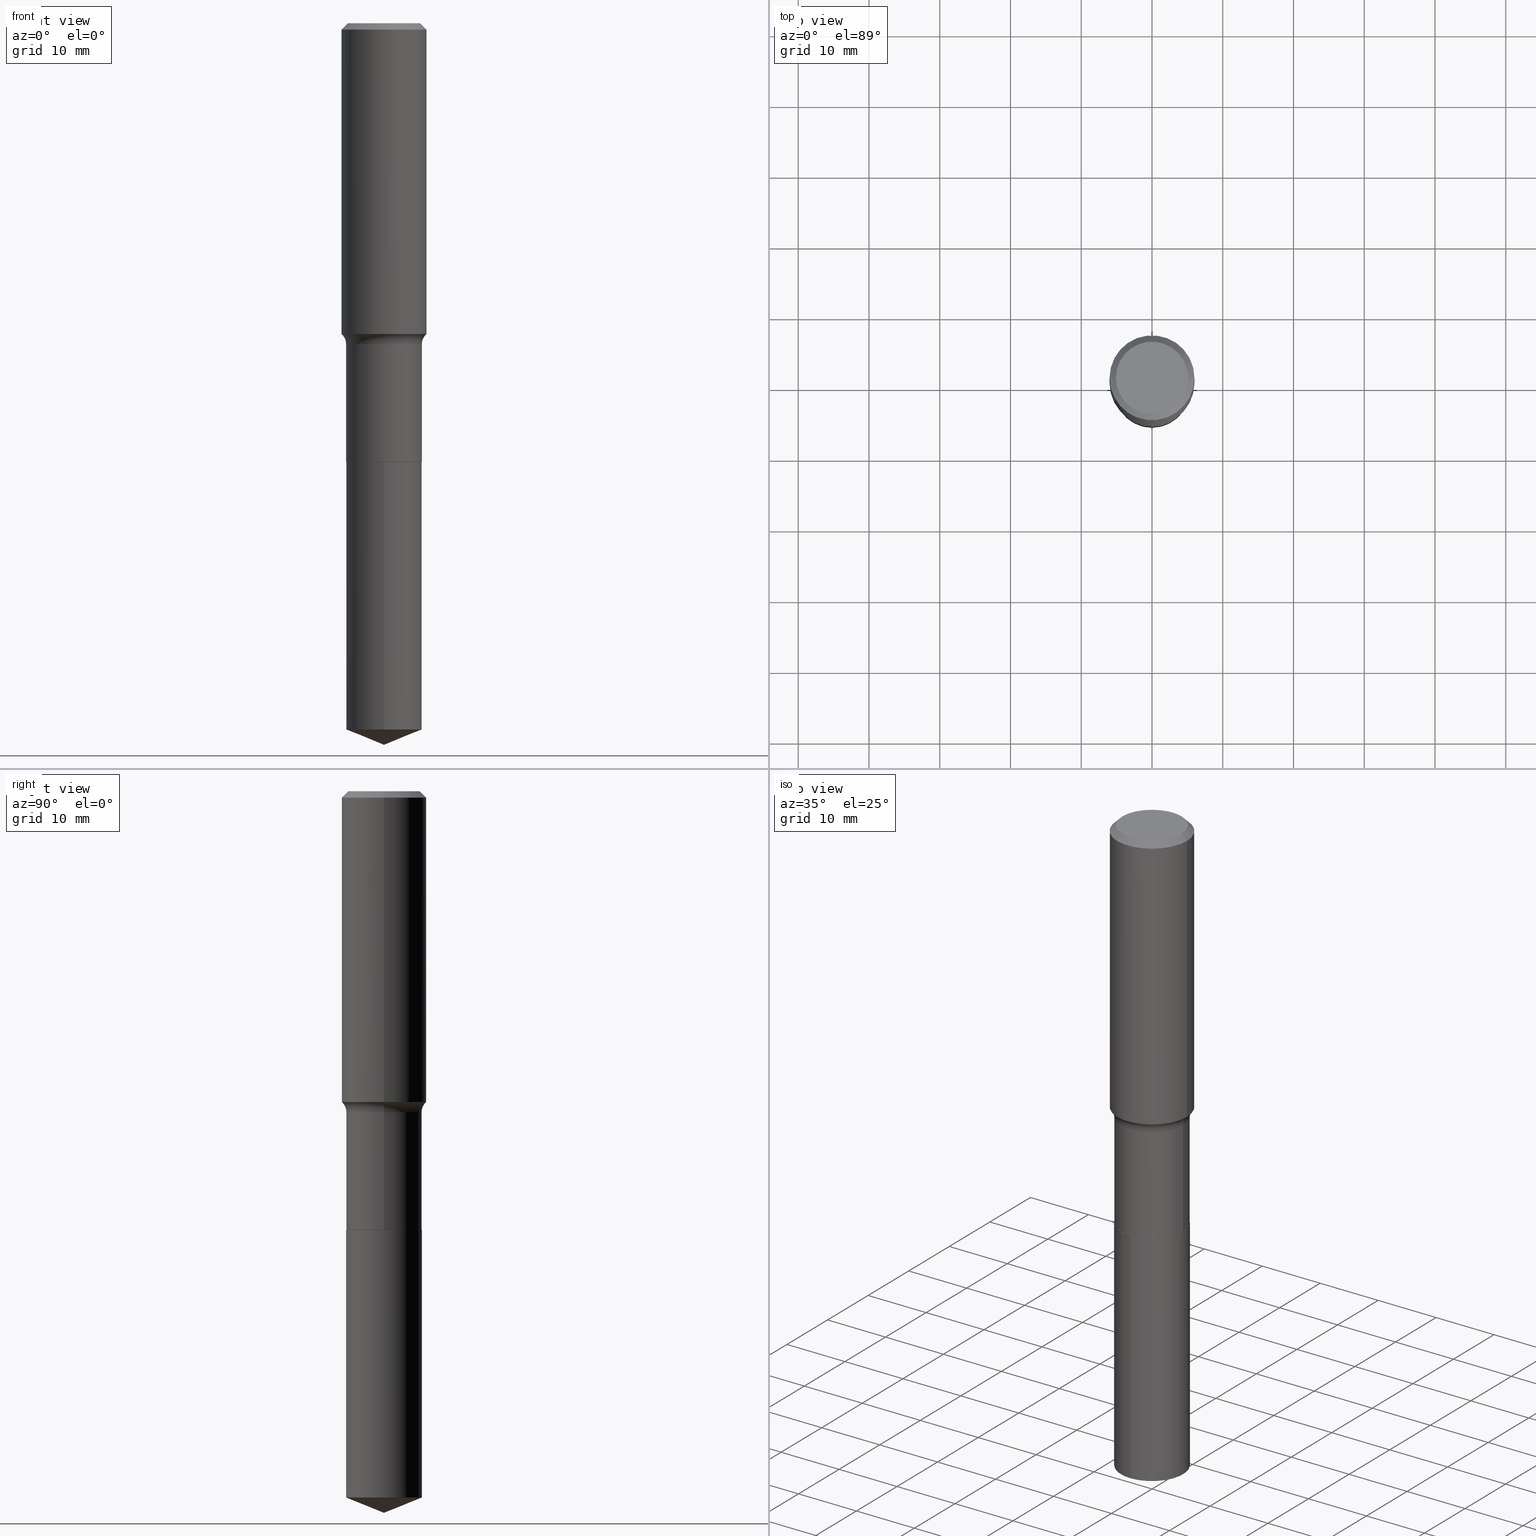
[diagram: canonical four-view strip — front | top / right | iso, engineering-drawing reading convention]
A machine part, canonical four-view strip (front | top / right | iso — engineering-drawing reading convention). The complete STEP part file that produces these views, byte-faithful:
ISO-10303-21;
HEADER;
FILE_DESCRIPTION (( 'STEP AP203' ),
    '1' );
FILE_NAME ('69197.STEP',
    '2024-04-19T17:21:59',
    ( '' ),
    ( '' ),
    'SwSTEP 2.0',
    'SolidWorks 2023',
    '' );
FILE_SCHEMA (( 'CONFIG_CONTROL_DESIGN' ));
ENDSEC;

DATA;
#1 = CYLINDRICAL_SURFACE ( 'NONE', #223, 0.2362000000000001043 ) ;
#2 = ORIENTED_EDGE ( 'NONE', *, *, #305, .T. ) ;
#3 = EDGE_CURVE ( 'NONE', #185, #444, #270, .T. ) ;
#4 = CARTESIAN_POINT ( 'NONE',  ( 0.000000000000000000, 0.000000000000000000, 0.000000000000000000 ) ) ;
#5 = ORIENTED_EDGE ( 'NONE', *, *, #88, .F. ) ;
#6 = CIRCLE ( 'NONE', #222, 0.2106499999999999484 ) ;
#7 = AXIS2_PLACEMENT_3D ( 'NONE', #375, #184, #383 ) ;
#8 = ORIENTED_EDGE ( 'NONE', *, *, #140, .F. ) ;
#9 = DIRECTION ( 'NONE',  ( -6.982962677686266711E-15, -1.000000000000000000, 3.491481338843145583E-15 ) ) ;
#10 = EDGE_CURVE ( 'NONE', #451, #432, #41, .T. ) ;
#11 = ORIENTED_EDGE ( 'NONE', *, *, #426, .F. ) ;
#12 = DIRECTION ( 'NONE',  ( 2.438088387897960049E-29, -3.491481338843145188E-15, -1.000000000000000000 ) ) ;
#13 = ORIENTED_EDGE ( 'NONE', *, *, #426, .T. ) ;
#14 = DIRECTION ( 'NONE',  ( 1.000000000000000000, -6.982962677686268288E-15, 0.000000000000000000 ) ) ;
#15 = AXIS2_PLACEMENT_3D ( 'NONE', #433, #22, #319 ) ;
#16 = EDGE_CURVE ( 'NONE', #185, #344, #481, .T. ) ;
#17 = CALENDAR_DATE ( 2024, 19, 4 ) ;
#18 = DIRECTION ( 'NONE',  ( -2.445425754346182208E-29, 3.491542991526886614E-15, 1.000000000000000000 ) ) ;
#19 = APPROVAL_STATUS ( 'not_yet_approved' ) ;
#20 = DIRECTION ( 'NONE',  ( 1.000000000000000000, -6.982962677686266711E-15, 4.876176775795935793E-29 ) ) ;
#21 = MECHANICAL_CONTEXT ( 'NONE', #465, 'mechanical' ) ;
#22 = DIRECTION ( 'NONE',  ( -2.445468806185136597E-29, 3.491481338843145583E-15, 1.000000000000000000 ) ) ;
#23 = CARTESIAN_POINT ( 'NONE',  ( 4.229115208764347773E-29, -6.038055686448444993E-15, -1.729367881556277187 ) ) ;
#24 = DIRECTION ( 'NONE',  ( 0.7071067811864267805, -2.468850131080992517E-15, 0.7071067811866682540 ) ) ;
#25 = EDGE_LOOP ( 'NONE', ( #250, #110, #117, #5 ) ) ;
#26 = FACE_OUTER_BOUND ( 'NONE', #139, .T. ) ;
#27 = MANIFOLD_SOLID_BREP ( 'Body-Move/Copy2[1]', #391 ) ;
#28 = EDGE_LOOP ( 'NONE', ( #104, #112, #488, #33 ) ) ;
#29 = CIRCLE ( 'NONE', #60, 0.2362000000000002153 ) ;
#30 = APPROVAL_PERSON_ORGANIZATION ( #273, #209, #86 ) ;
#31 = EDGE_CURVE ( 'NONE', #173, #39, #389, .T. ) ;
#32 = CARTESIAN_POINT ( 'NONE',  ( 5.969144809017299038E-29, -8.522356799982232966E-15, -2.440900000000000070 ) ) ;
#33 = ORIENTED_EDGE ( 'NONE', *, *, #215, .T. ) ;
#34 = LINE ( 'NONE', #251, #73 ) ;
#35 = EDGE_LOOP ( 'NONE', ( #11, #221, #264, #416 ) ) ;
#36 = CARTESIAN_POINT ( 'NONE',  ( 0.000000000000000000, 0.000000000000000000, 0.000000000000000000 ) ) ;
#37 = CIRCLE ( 'NONE', #312, 0.2101500000000000035 ) ;
#38 = DIRECTION ( 'NONE',  ( 1.000000000000000000, -6.982962677686274599E-15, 0.000000000000000000 ) ) ;
#39 = VERTEX_POINT ( 'NONE', #122 ) ;
#40 = CARTESIAN_POINT ( 'NONE',  ( 5.969144809017299038E-29, -8.522356799982232966E-15, -2.440900000000000070 ) ) ;
#41 = LINE ( 'NONE', #186, #280 ) ;
#42 = EDGE_LOOP ( 'NONE', ( #213, #309, #182, #428 ) ) ;
#43 = AXIS2_PLACEMENT_3D ( 'NONE', #467, #440, #285 ) ;
#44 = PLANE ( 'NONE',  #116 ) ;
#45 = ORIENTED_EDGE ( 'NONE', *, *, #232, .F. ) ;
#46 = DIRECTION ( 'NONE',  ( -2.445468806185136597E-29, 3.491481338843145583E-15, 1.000000000000000000 ) ) ;
#47 = VERTEX_POINT ( 'NONE', #235 ) ;
#48 = DIRECTION ( 'NONE',  ( -2.445468806185136597E-29, 3.491481338843145583E-15, 1.000000000000000000 ) ) ;
#49 = ADVANCED_FACE ( 'NONE', ( #170 ), #123, .F. ) ;
#50 = CARTESIAN_POINT ( 'NONE',  ( 0.000000000000000000, 0.000000000000000000, 0.000000000000000000 ) ) ;
#51 = CONICAL_SURFACE ( 'NONE', #288, 0.2361999999999999933, 0.7853981633974452814 ) ;
#52 = AXIS2_PLACEMENT_3D ( 'NONE', #56, #124, #395 ) ;
#53 = DATE_AND_TIME ( #161, #176 ) ;
#54 = CARTESIAN_POINT ( 'NONE',  ( -1.001697619218023151E-46, 1.430158722866391908E-32, 4.096137381448114529E-18 ) ) ;
#55 = ADVANCED_FACE ( 'NONE', ( #358 ), #419, .T. ) ;
#56 = CARTESIAN_POINT ( 'NONE',  ( 0.000000000000000000, 0.000000000000000000, 0.000000000000000000 ) ) ;
#57 = CARTESIAN_POINT ( 'NONE',  ( -0.2007700000000000040, 1.463821008716677338E-15, 4.096137381438094301E-18 ) ) ;
#58 = PERSON_AND_ORGANIZATION ( #274, #198 ) ;
#59 = CARTESIAN_POINT ( 'NONE',  ( 5.969144809017300159E-29, -8.522356799982234543E-15, -2.440900000000000070 ) ) ;
#60 = AXIS2_PLACEMENT_3D ( 'NONE', #23, #356, #91 ) ;
#61 =( GEOMETRIC_REPRESENTATION_CONTEXT ( 3 ) GLOBAL_UNCERTAINTY_ASSIGNED_CONTEXT ( ( #397 ) ) GLOBAL_UNIT_ASSIGNED_CONTEXT ( ( #74, #378, #345 ) ) REPRESENTATION_CONTEXT ( 'NONE', 'WORKASPACE' ) );
#62 = CARTESIAN_POINT ( 'NONE',  ( 9.820096201727962755E-29, -1.402098919107451851E-14, -4.015699999999999825 ) ) ;
#63 = DIRECTION ( 'NONE',  ( -6.982962677686265922E-15, -1.000000000000000000, 2.593731776562319814E-15 ) ) ;
#64 = DIRECTION ( 'NONE',  ( -1.000000000000000000, 6.982962677686266711E-15, 0.000000000000000000 ) ) ;
#65 = AXIS2_PLACEMENT_3D ( 'NONE', #301, #457, #315 ) ;
#66 = TOROIDAL_SURFACE ( 'NONE', #15, 0.2886499999999999622, 0.07799999999999999989 ) ;
#67 = PRODUCT ( '69197', '69197', '', ( #21 ) ) ;
#68 = FACE_OUTER_BOUND ( 'NONE', #423, .T. ) ;
#69 = ADVANCED_FACE ( 'NONE', ( #85 ), #66, .F. ) ;
#70 = CARTESIAN_POINT ( 'NONE',  ( 9.820096201727964997E-29, -1.402098919107452008E-14, -4.015699999999999825 ) ) ;
#71 = ORIENTED_EDGE ( 'NONE', *, *, #179, .F. ) ;
#72 = CARTESIAN_POINT ( 'NONE',  ( -0.2101500000000000035, -7.026502013608272383E-15, -2.440900000000000070 ) ) ;
#73 = VECTOR ( 'NONE', #449, 39.37007874015748854 ) ;
#74 =( CONVERSION_BASED_UNIT ( 'INCH', #106 ) LENGTH_UNIT ( ) NAMED_UNIT ( #144 ) );
#75 = ORIENTED_EDGE ( 'NONE', *, *, #257, .T. ) ;
#76 = FACE_OUTER_BOUND ( 'NONE', #83, .T. ) ;
#77 = ORIENTED_EDGE ( 'NONE', *, *, #158, .F. ) ;
#78 = EDGE_CURVE ( 'NONE', #344, #39, #429, .T. ) ;
#79 = PLANE ( 'NONE',  #183 ) ;
#80 = ORIENTED_EDGE ( 'NONE', *, *, #307, .F. ) ;
#81 = CIRCLE ( 'NONE', #281, 0.2361999999999999933 ) ;
#82 = DIRECTION ( 'NONE',  ( -2.445425754346182208E-29, 3.491542991526886614E-15, 1.000000000000000000 ) ) ;
#83 = EDGE_LOOP ( 'NONE', ( #145, #462, #297, #45 ) ) ;
#84 = DATE_AND_TIME ( #398, #385 ) ;
#85 = FACE_OUTER_BOUND ( 'NONE', #42, .T. ) ;
#86 = APPROVAL_ROLE ( '' ) ;
#87 = DIRECTION ( 'NONE',  ( -2.445425754346182208E-29, 3.491542991526886614E-15, 1.000000000000000000 ) ) ;
#88 = EDGE_CURVE ( 'NONE', #234, #173, #448, .T. ) ;
#89 = DATE_TIME_ROLE ( 'classification_date' ) ;
#90 = CONICAL_SURFACE ( 'NONE', #97, 97.44436430772833546, 1.186823891356144633 ) ;
#91 = DIRECTION ( 'NONE',  ( 1.000000000000000000, -6.982962677686266711E-15, 0.000000000000000000 ) ) ;
#92 = EDGE_CURVE ( 'NONE', #384, #266, #399, .T. ) ;
#93 = ADVANCED_FACE ( 'NONE', ( #128 ), #463, .T. ) ;
#94 = COORDINATED_UNIVERSAL_TIME_OFFSET ( 5, 0, .BEHIND. ) ;
#95 = DIRECTION ( 'NONE',  ( -2.445468806185136597E-29, 3.491481338843145583E-15, 1.000000000000000000 ) ) ;
#96 = DIRECTION ( 'NONE',  ( -2.445468806185136597E-29, 3.491481338843145583E-15, 1.000000000000000000 ) ) ;
#97 = AXIS2_PLACEMENT_3D ( 'NONE', #203, #396, #470 ) ;
#98 = CARTESIAN_POINT ( 'NONE',  ( 9.612075687473308586E-29, -1.372368002751595173E-14, -3.930591875527824186 ) ) ;
#99 = LINE ( 'NONE', #289, #238 ) ;
#100 = ORIENTED_EDGE ( 'NONE', *, *, #214, .F. ) ;
#101 = FACE_OUTER_BOUND ( 'NONE', #259, .T. ) ;
#102 = CIRCLE ( 'NONE', #272, 0.2362000000000002153 ) ;
#103 = DIRECTION ( 'NONE',  ( 2.445468806185136597E-29, -3.491481338843145583E-15, -1.000000000000000000 ) ) ;
#104 = ORIENTED_EDGE ( 'NONE', *, *, #16, .F. ) ;
#105 = DIRECTION ( 'NONE',  ( 1.000000000000000000, -6.982962677686265922E-15, 4.876176775795935793E-29 ) ) ;
#106 = LENGTH_MEASURE_WITH_UNIT ( LENGTH_MEASURE( 0.02539999999999999897 ), #386 );
#107 = VERTEX_POINT ( 'NONE', #57 ) ;
#108 = CIRCLE ( 'NONE', #141, 0.2007700000000000040 ) ;
#109 = FACE_OUTER_BOUND ( 'NONE', #409, .T. ) ;
#110 = ORIENTED_EDGE ( 'NONE', *, *, #179, .T. ) ;
#111 = CARTESIAN_POINT ( 'NONE',  ( -1.470961088054552202E-15, -0.2106500000000085526, -2.440899999999999181 ) ) ;
#112 = ORIENTED_EDGE ( 'NONE', *, *, #130, .F. ) ;
#113 = DIRECTION ( 'NONE',  ( -2.438088387897960049E-29, 3.491481338843145188E-15, 1.000000000000000000 ) ) ;
#114 = EDGE_LOOP ( 'NONE', ( #8, #71 ) ) ;
#115 = APPROVAL_ROLE ( '' ) ;
#116 = AXIS2_PLACEMENT_3D ( 'NONE', #427, #12, #146 ) ;
#117 = ORIENTED_EDGE ( 'NONE', *, *, #232, .T. ) ;
#118 = PERSON_AND_ORGANIZATION ( #274, #198 ) ;
#119 = APPROVAL ( #363, 'UNSPECIFIED' ) ;
#120 = CARTESIAN_POINT ( 'NONE',  ( 5.967922074614207358E-29, -8.520611059312812251E-15, -2.440399999999999903 ) ) ;
#121 = PERSON_AND_ORGANIZATION ( #274, #198 ) ;
#122 = CARTESIAN_POINT ( 'NONE',  ( 0.2106499999999999484, -7.710587388701196730E-15, -1.787099999999999911 ) ) ;
#123 = TOROIDAL_SURFACE ( 'NONE', #43, 0.2886499999999999622, 0.07799999999999999989 ) ;
#124 = DIRECTION ( 'NONE',  ( 0.000000000000000000, 0.000000000000000000, 1.000000000000000000 ) ) ;
#125 = AXIS2_PLACEMENT_3D ( 'NONE', #276, #87, #359 ) ;
#126 = ADVANCED_FACE ( 'NONE', ( #278 ), #51, .T. ) ;
#127 = APPROVAL_DATE_TIME ( #84, #119 ) ;
#128 = FACE_OUTER_BOUND ( 'NONE', #25, .T. ) ;
#129 = CARTESIAN_POINT ( 'NONE',  ( 5.969144809017300159E-29, -8.522356799982234543E-15, -2.440900000000000070 ) ) ;
#130 = EDGE_CURVE ( 'NONE', #187, #185, #29, .T. ) ;
#131 = DIRECTION ( 'NONE',  ( -6.982962677686265922E-15, -1.000000000000000000, 3.890597664843479129E-15 ) ) ;
#132 = CLOSED_SHELL ( 'NONE', ( #327, #243, #166, #69, #367, #267, #49, #492, #126, #313, #469, #93 ) ) ;
#133 = AXIS2_PLACEMENT_3D ( 'NONE', #120, #95, #244 ) ;
#134 = ORIENTED_EDGE ( 'NONE', *, *, #31, .T. ) ;
#135 = DIRECTION ( 'NONE',  ( -2.445468806185136597E-29, 3.491481338843145583E-15, 1.000000000000000000 ) ) ;
#136 = CC_DESIGN_PERSON_AND_ORGANIZATION_ASSIGNMENT ( #437, #168, ( #430 ) ) ;
#137 = DIRECTION ( 'NONE',  ( -2.445468806185136597E-29, 3.491481338843145583E-15, 1.000000000000000000 ) ) ;
#138 = LINE ( 'NONE', #177, #328 ) ;
#139 = EDGE_LOOP ( 'NONE', ( #332, #193 ) ) ;
#140 = EDGE_CURVE ( 'NONE', #295, #374, #368, .T. ) ;
#141 = AXIS2_PLACEMENT_3D ( 'NONE', #54, #162, #201 ) ;
#142 = ADVANCED_FACE ( 'NONE', ( #240 ), #90, .T. ) ;
#143 = CYLINDRICAL_SURFACE ( 'NONE', #188, 0.2106499999999999762 ) ;
#144 = DIMENSIONAL_EXPONENTS ( 1.000000000000000000, 0.000000000000000000, 0.000000000000000000, 0.000000000000000000, 0.000000000000000000, 0.000000000000000000, 0.000000000000000000 ) ;
#145 = ORIENTED_EDGE ( 'NONE', *, *, #140, .T. ) ;
#146 = DIRECTION ( 'NONE',  ( -1.000000000000000000, 6.982962677686265922E-15, -4.876176775795935793E-29 ) ) ;
#147 = EDGE_LOOP ( 'NONE', ( #261, #414, #377 ) ) ;
#148 = DIRECTION ( 'NONE',  ( 1.000000000000000000, -6.982962677686266711E-15, 0.000000000000000000 ) ) ;
#149 = ORIENTED_EDGE ( 'NONE', *, *, #10, .F. ) ;
#150 = CIRCLE ( 'NONE', #160, 0.2106500000000000039 ) ;
#151 = CIRCLE ( 'NONE', #321, 0.07799999999999995826 ) ;
#152 = CARTESIAN_POINT ( 'NONE',  ( 1.496758272878746719E-15, 0.2106499999999862371, -3.930591875527825074 ) ) ;
#153 = ORIENTED_EDGE ( 'NONE', *, *, #307, .T. ) ;
#154 = CARTESIAN_POINT ( 'NONE',  ( 0.2886499999999999622, -8.255258477560724776E-15, -1.787099999999999911 ) ) ;
#155 = ORIENTED_EDGE ( 'NONE', *, *, #237, .T. ) ;
#156 = APPROVAL_DATE_TIME ( #314, #209 ) ;
#157 = ORIENTED_EDGE ( 'NONE', *, *, #478, .T. ) ;
#158 = EDGE_CURVE ( 'NONE', #107, #384, #108, .T. ) ;
#159 = EDGE_CURVE ( 'NONE', #47, #432, #196, .T. ) ;
#160 = AXIS2_PLACEMENT_3D ( 'NONE', #411, #137, #330 ) ;
#161 = CALENDAR_DATE ( 2024, 19, 4 ) ;
#162 = DIRECTION ( 'NONE',  ( -2.445468806185136597E-29, 3.491481338843145583E-15, 1.000000000000000000 ) ) ;
#163 = DATE_TIME_ROLE ( 'creation_date' ) ;
#164 = DIRECTION ( 'NONE',  ( -6.982962677686265922E-15, -1.000000000000000000, 2.593731776562319814E-15 ) ) ;
#165 = COORDINATED_UNIVERSAL_TIME_OFFSET ( 5, 0, .BEHIND. ) ;
#166 = ADVANCED_FACE ( 'NONE', ( #361 ), #236, .T. ) ;
#167 = CARTESIAN_POINT ( 'NONE',  ( 9.612075687473308586E-29, -1.372368002751595173E-14, -3.930591875527824186 ) ) ;
#168 = PERSON_AND_ORGANIZATION_ROLE ( 'classification_officer' ) ;
#169 = CIRCLE ( 'NONE', #473, 0.2106500000000000039 ) ;
#170 = FACE_OUTER_BOUND ( 'NONE', #28, .T. ) ;
#171 = DIRECTION ( 'NONE',  ( -6.982962677686265133E-15, -1.000000000000000000, 3.498761904101830713E-15 ) ) ;
#172 = DIRECTION ( 'NONE',  ( 1.000000000000000000, -6.982962677686268288E-15, 0.000000000000000000 ) ) ;
#173 = VERTEX_POINT ( 'NONE', #471 ) ;
#174 = EDGE_CURVE ( 'NONE', #341, #451, #246, .T. ) ;
#175 = CARTESIAN_POINT ( 'NONE',  ( 0.2362000000000002153, -7.687431470917942307E-15, -1.729367881556277187 ) ) ;
#176 = LOCAL_TIME ( 13, 21, 59.00000000000000000, #165 ) ;
#177 = CARTESIAN_POINT ( 'NONE',  ( 0.2101500000000000035, -9.989826406698003297E-15, -2.440900000000000070 ) ) ;
#178 = ORIENTED_EDGE ( 'NONE', *, *, #237, .F. ) ;
#179 = EDGE_CURVE ( 'NONE', #374, #295, #37, .T. ) ;
#180 = CARTESIAN_POINT ( 'NONE',  ( 8.664295980313993487E-31, -1.237031838352134079E-16, -0.03543000000000021826 ) ) ;
#181 = DIRECTION ( 'NONE',  ( -2.445468806185136597E-29, 3.491481338843145583E-15, 1.000000000000000000 ) ) ;
#182 = ORIENTED_EDGE ( 'NONE', *, *, #78, .T. ) ;
#183 = AXIS2_PLACEMENT_3D ( 'NONE', #219, #113, #105 ) ;
#184 = DIRECTION ( 'NONE',  ( -2.445468806185136597E-29, 3.491481338843145583E-15, 1.000000000000000000 ) ) ;
#185 = VERTEX_POINT ( 'NONE', #371 ) ;
#186 = CARTESIAN_POINT ( 'NONE',  ( -1.470961088054552202E-15, -0.2106500000000085526, -2.440899999999999181 ) ) ;
#187 = VERTEX_POINT ( 'NONE', #175 ) ;
#188 = AXIS2_PLACEMENT_3D ( 'NONE', #36, #181, #333 ) ;
#189 = DIRECTION ( 'NONE',  ( 1.000000000000000000, -6.982962677686268288E-15, 0.000000000000000000 ) ) ;
#190 = EDGE_CURVE ( 'NONE', #173, #234, #150, .T. ) ;
#191 = ORIENTED_EDGE ( 'NONE', *, *, #214, .T. ) ;
#192 = LINE ( 'NONE', #269, #482 ) ;
#193 = ORIENTED_EDGE ( 'NONE', *, *, #486, .T. ) ;
#194 = ADVANCED_FACE ( 'NONE', ( #68 ), #413, .F. ) ;
#195 = DIRECTION ( 'NONE',  ( 2.445468806185136597E-29, -3.491481338843145583E-15, -1.000000000000000000 ) ) ;
#196 = CIRCLE ( 'NONE', #125, 0.2106500000000000039 ) ;
#197 = PERSON_AND_ORGANIZATION_ROLE ( 'design_supplier' ) ;
#198 = ORGANIZATION ( 'UNSPECIFIED', 'UNSPECIFIED', '' ) ;
#199 = DIRECTION ( 'NONE',  ( -2.445468806185136597E-29, 3.491481338843145583E-15, 1.000000000000000000 ) ) ;
#200 = APPLICATION_PROTOCOL_DEFINITION ( 'international standard', 'config_control_design', 1994, #465 ) ;
#201 = DIRECTION ( 'NONE',  ( 1.000000000000000000, -6.982962677686266711E-15, 4.876140833081945105E-29 ) ) ;
#202 = APPLICATION_PROTOCOL_DEFINITION ( 'international standard', 'config_control_design', 1994, #204 ) ;
#203 = CARTESIAN_POINT ( 'NONE',  ( -8.645640321485652588E-28, 1.234414837980197635E-13, 35.35437874015748605 ) ) ;
#204 = APPLICATION_CONTEXT ( 'configuration controlled 3d designs of mechanical parts and assemblies' ) ;
#205 = PERSON_AND_ORGANIZATION_ROLE ( 'creator' ) ;
#206 = CARTESIAN_POINT ( 'NONE',  ( 0.2106499999999999762, -1.470961088054611958E-15, 1.027166637821413806E-29 ) ) ;
#207 = CC_DESIGN_APPROVAL ( #268, ( #407 ) ) ;
#208 = LINE ( 'NONE', #479, #320 ) ;
#209 = APPROVAL ( #468, 'UNSPECIFIED' ) ;
#210 = LINE ( 'NONE', #70, #362 ) ;
#211 = FACE_OUTER_BOUND ( 'NONE', #35, .T. ) ;
#212 = AXIS2_PLACEMENT_3D ( 'NONE', #369, #487, #131 ) ;
#213 = ORIENTED_EDGE ( 'NONE', *, *, #403, .F. ) ;
#214 = EDGE_CURVE ( 'NONE', #432, #47, #436, .T. ) ;
#215 = EDGE_CURVE ( 'NONE', #39, #344, #6, .T. ) ;
#216 = DIRECTION ( 'NONE',  ( -2.445425754346182208E-29, 3.491542991526886614E-15, 1.000000000000000000 ) ) ;
#217 = DIRECTION ( 'NONE',  ( -6.474490251793178629E-15, -0.9271838545667862030, 0.3746065934159147903 ) ) ;
#218 = ORIENTED_EDGE ( 'NONE', *, *, #403, .T. ) ;
#219 = CARTESIAN_POINT ( 'NONE',  ( 3.753414775677078868E-29, -1.169540831924709376E-14, -2.440900000000000070 ) ) ;
#220 = EDGE_CURVE ( 'NONE', #227, #341, #34, .T. ) ;
#221 = ORIENTED_EDGE ( 'NONE', *, *, #174, .T. ) ;
#222 = AXIS2_PLACEMENT_3D ( 'NONE', #292, #135, #483 ) ;
#223 = AXIS2_PLACEMENT_3D ( 'NONE', #263, #418, #226 ) ;
#224 = EDGE_LOOP ( 'NONE', ( #491, #275, #155, #484 ) ) ;
#225 = PRODUCT_RELATED_PRODUCT_CATEGORY ( 'detail', '', ( #67 ) ) ;
#226 = DIRECTION ( 'NONE',  ( 1.000000000000000000, -6.982962677686266711E-15, 4.876176775795935793E-29 ) ) ;
#227 = VERTEX_POINT ( 'NONE', #62 ) ;
#228 = ADVANCED_FACE ( 'NONE', ( #211 ), #290, .T. ) ;
#229 = CARTESIAN_POINT ( 'NONE',  ( 8.664295980313993487E-31, -1.237031838352134079E-16, -0.03543000000000021826 ) ) ;
#230 = ORIENTED_EDGE ( 'NONE', *, *, #3, .T. ) ;
#231 = AXIS2_PLACEMENT_3D ( 'NONE', #455, #424, #189 ) ;
#232 = EDGE_CURVE ( 'NONE', #295, #173, #138, .T. ) ;
#233 = FACE_OUTER_BOUND ( 'NONE', #335, .T. ) ;
#234 = VERTEX_POINT ( 'NONE', #325 ) ;
#235 = CARTESIAN_POINT ( 'NONE',  ( 1.496758272878746916E-15, 0.2106499999999914274, -2.440900000000000514 ) ) ;
#236 = CYLINDRICAL_SURFACE ( 'NONE', #339, 0.2362000000000001043 ) ;
#237 = EDGE_CURVE ( 'NONE', #266, #444, #81, .T. ) ;
#238 = VECTOR ( 'NONE', #443, 39.37007874015748143 ) ;
#239 = PERSON_AND_ORGANIZATION ( #274, #198 ) ;
#240 = FACE_OUTER_BOUND ( 'NONE', #147, .T. ) ;
#241 = CALENDAR_DATE ( 2024, 19, 4 ) ;
#242 = DIRECTION ( 'NONE',  ( 1.000000000000000000, -6.982962677686267499E-15, 0.000000000000000000 ) ) ;
#243 = ADVANCED_FACE ( 'NONE', ( #446 ), #454, .T. ) ;
#244 = DIRECTION ( 'NONE',  ( 1.000000000000000000, -6.982962677686265922E-15, 0.000000000000000000 ) ) ;
#245 = EDGE_CURVE ( 'NONE', #227, #451, #210, .T. ) ;
#246 = CIRCLE ( 'NONE', #294, 0.2106500000000000039 ) ;
#247 = DIRECTION ( 'NONE',  ( 2.445425754346182208E-29, -3.491542991526886220E-15, -1.000000000000000000 ) ) ;
#248 = DESIGN_CONTEXT ( 'detailed design', #204, 'design' ) ;
#249 = DIRECTION ( 'NONE',  ( -0.7071067811864267805, 7.493145998869918709E-15, 0.7071067811866682540 ) ) ;
#250 = ORIENTED_EDGE ( 'NONE', *, *, #298, .F. ) ;
#251 = CARTESIAN_POINT ( 'NONE',  ( 9.820308215142285184E-29, -1.402068821500303058E-14, -4.015699999999999825 ) ) ;
#252 = LINE ( 'NONE', #404, #392 ) ;
#253 = VECTOR ( 'NONE', #400, 39.37007874015748143 ) ;
#254 = CC_DESIGN_SECURITY_CLASSIFICATION ( #430, ( #357 ) ) ;
#255 = PRODUCT_DEFINITION_SHAPE ( 'NONE', 'NONE',  #407 ) ;
#256 = CARTESIAN_POINT ( 'NONE',  ( 5.969144809017299038E-29, -8.522356799982232966E-15, -2.440900000000000070 ) ) ;
#257 = EDGE_CURVE ( 'NONE', #187, #266, #366, .T. ) ;
#258 = CARTESIAN_POINT ( 'NONE',  ( 4.229115208764347773E-29, -6.038055686448444993E-15, -1.729367881556277187 ) ) ;
#259 = EDGE_LOOP ( 'NONE', ( #299, #387, #134, #425 ) ) ;
#260 = CYLINDRICAL_SURFACE ( 'NONE', #456, 0.2106500000000000039 ) ;
#261 = ORIENTED_EDGE ( 'NONE', *, *, #220, .F. ) ;
#262 = AXIS2_PLACEMENT_3D ( 'NONE', #256, #216, #365 ) ;
#263 = CARTESIAN_POINT ( 'NONE',  ( 0.000000000000000000, 0.000000000000000000, 0.000000000000000000 ) ) ;
#264 = ORIENTED_EDGE ( 'NONE', *, *, #10, .T. ) ;
#265 = DIRECTION ( 'NONE',  ( -6.982962677686265922E-15, -1.000000000000000000, 3.890597664843479129E-15 ) ) ;
#266 = VERTEX_POINT ( 'NONE', #408 ) ;
#267 = ADVANCED_FACE ( 'NONE', ( #101 ), #143, .T. ) ;
#268 = APPROVAL ( #19, 'UNSPECIFIED' ) ;
#269 = CARTESIAN_POINT ( 'NONE',  ( 1.496758272878710628E-15, 0.2106499999999914829, -2.440900000000000514 ) ) ;
#270 = LINE ( 'NONE', #379, #417 ) ;
#271 = AXIS2_PLACEMENT_3D ( 'NONE', #438, #48, #242 ) ;
#272 = AXIS2_PLACEMENT_3D ( 'NONE', #258, #452, #148 ) ;
#273 = PERSON_AND_ORGANIZATION ( #274, #198 ) ;
#274 = PERSON ( 'UNSPECIFIED', 'UNSPECIFIED', 'UNSPECIFIED', ('UNSPECIFIED'), ('UNSPECIFIED'), ('UNSPECIFIED') ) ;
#275 = ORIENTED_EDGE ( 'NONE', *, *, #92, .T. ) ;
#276 = CARTESIAN_POINT ( 'NONE',  ( 5.969144809017299038E-29, -8.522356799982232966E-15, -2.440900000000000070 ) ) ;
#277 = PERSON_AND_ORGANIZATION_ROLE ( 'design_owner' ) ;
#278 = FACE_OUTER_BOUND ( 'NONE', #460, .T. ) ;
#279 = CC_DESIGN_PERSON_AND_ORGANIZATION_ASSIGNMENT ( #58, #277, ( #67 ) ) ;
#280 = VECTOR ( 'NONE', #346, 39.37007874015748143 ) ;
#281 = AXIS2_PLACEMENT_3D ( 'NONE', #180, #336, #485 ) ;
#282 = CALENDAR_DATE ( 2024, 19, 4 ) ;
#283 = DIRECTION ( 'NONE',  ( -2.445468806185136597E-29, 3.491481338843145583E-15, 1.000000000000000000 ) ) ;
#284 = APPROVAL_ROLE ( '' ) ;
#285 = DIRECTION ( 'NONE',  ( 1.000000000000000000, -6.982962677686267499E-15, 4.883557194083114022E-29 ) ) ;
#286 = EDGE_CURVE ( 'NONE', #107, #444, #252, .T. ) ;
#287 = DIRECTION ( 'NONE',  ( -2.445468806185136877E-29, 3.491481338843145188E-15, 1.000000000000000000 ) ) ;
#288 = AXIS2_PLACEMENT_3D ( 'NONE', #324, #195, #390 ) ;
#289 = CARTESIAN_POINT ( 'NONE',  ( -0.2106499999999999762, 1.496758272878650872E-15, -1.036173676762195916E-29 ) ) ;
#290 = CYLINDRICAL_SURFACE ( 'NONE', #262, 0.2106500000000000039 ) ;
#291 = EDGE_LOOP ( 'NONE', ( #381, #230, #178, #480 ) ) ;
#292 = CARTESIAN_POINT ( 'NONE',  ( 4.370297303533457201E-29, -6.239626300646584969E-15, -1.787099999999999911 ) ) ;
#293 = CARTESIAN_POINT ( 'NONE',  ( 8.664295980313993487E-31, -1.237031838352134079E-16, -0.03543000000000021826 ) ) ;
#294 = AXIS2_PLACEMENT_3D ( 'NONE', #167, #18, #164 ) ;
#295 = VERTEX_POINT ( 'NONE', #441 ) ;
#296 = CARTESIAN_POINT ( 'NONE',  ( 0.2007700000000000040, -1.560767496960719672E-15, 4.096137381458473721E-18 ) ) ;
#297 = ORIENTED_EDGE ( 'NONE', *, *, #190, .F. ) ;
#298 = EDGE_CURVE ( 'NONE', #374, #234, #208, .T. ) ;
#299 = ORIENTED_EDGE ( 'NONE', *, *, #305, .F. ) ;
#300 = DIRECTION ( 'NONE',  ( -2.445468806185136597E-29, 3.491481338843145583E-15, 1.000000000000000000 ) ) ;
#301 = CARTESIAN_POINT ( 'NONE',  ( -0.2886499999999999622, -4.188644693875056051E-15, -1.787099999999999911 ) ) ;
#302 = AXIS2_PLACEMENT_3D ( 'NONE', #293, #103, #64 ) ;
#303 = LOCAL_TIME ( 13, 21, 59.00000000000000000, #434 ) ;
#304 = FACE_OUTER_BOUND ( 'NONE', #349, .T. ) ;
#305 = EDGE_CURVE ( 'NONE', #234, #344, #99, .T. ) ;
#306 = ORIENTED_EDGE ( 'NONE', *, *, #190, .T. ) ;
#307 = EDGE_CURVE ( 'NONE', #451, #341, #169, .T. ) ;
#308 = DIRECTION ( 'NONE',  ( 1.000000000000000000, -6.982962677686266711E-15, 4.876176775795935793E-29 ) ) ;
#309 = ORIENTED_EDGE ( 'NONE', *, *, #16, .T. ) ;
#310 = COORDINATED_UNIVERSAL_TIME_OFFSET ( 5, 0, .BEHIND. ) ;
#311 = ORIENTED_EDGE ( 'NONE', *, *, #3, .F. ) ;
#312 = AXIS2_PLACEMENT_3D ( 'NONE', #317, #96, #172 ) ;
#313 = ADVANCED_FACE ( 'NONE', ( #26 ), #44, .F. ) ;
#314 = DATE_AND_TIME ( #282, #303 ) ;
#315 = DIRECTION ( 'NONE',  ( -1.000000000000000000, 7.105427357601001859E-15, 0.000000000000000000 ) ) ;
#316 = CC_DESIGN_PERSON_AND_ORGANIZATION_ASSIGNMENT ( #121, #205, ( #407 ) ) ;
#317 = CARTESIAN_POINT ( 'NONE',  ( 5.969144809017300159E-29, -8.522356799982234543E-15, -2.440900000000000070 ) ) ;
#318 = PERSON_AND_ORGANIZATION ( #274, #198 ) ;
#319 = DIRECTION ( 'NONE',  ( 1.000000000000000000, -6.982962677686267499E-15, 4.883557194083114022E-29 ) ) ;
#320 = VECTOR ( 'NONE', #249, 39.37007874015748143 ) ;
#321 = AXIS2_PLACEMENT_3D ( 'NONE', #154, #9, #38 ) ;
#322 = DATE_AND_TIME ( #241, #489 ) ;
#323 = DIRECTION ( 'NONE',  ( -2.445425754346182208E-29, 3.491542991526886614E-15, 1.000000000000000000 ) ) ;
#324 = CARTESIAN_POINT ( 'NONE',  ( 8.664295980313993487E-31, -1.237031838352134079E-16, -0.03543000000000021826 ) ) ;
#325 = CARTESIAN_POINT ( 'NONE',  ( -0.2106500000000000039, -5.883360407101046752E-15, -2.440399999999999903 ) ) ;
#326 = ORIENTED_EDGE ( 'NONE', *, *, #286, .T. ) ;
#327 = ADVANCED_FACE ( 'NONE', ( #76 ), #474, .T. ) ;
#328 = VECTOR ( 'NONE', #24, 39.37007874015748143 ) ;
#329 = AXIS2_PLACEMENT_3D ( 'NONE', #476, #323, #171 ) ;
#330 = DIRECTION ( 'NONE',  ( 1.000000000000000000, -6.982962677686265922E-15, 0.000000000000000000 ) ) ;
#331 = AXIS2_PLACEMENT_3D ( 'NONE', #229, #300, #415 ) ;
#332 = ORIENTED_EDGE ( 'NONE', *, *, #158, .T. ) ;
#333 = DIRECTION ( 'NONE',  ( 1.000000000000000000, -6.982962677686266711E-15, 4.876176775795935793E-29 ) ) ;
#334 = CC_DESIGN_DATE_AND_TIME_ASSIGNMENT ( #431, #163, ( #407 ) ) ;
#335 = EDGE_LOOP ( 'NONE', ( #153, #13, #100, #149 ) ) ;
#336 = DIRECTION ( 'NONE',  ( -2.445468806185136597E-29, 3.491481338843145583E-15, 1.000000000000000000 ) ) ;
#337 = ORIENTED_EDGE ( 'NONE', *, *, #215, .F. ) ;
#338 = DIRECTION ( 'NONE',  ( -0.7071067811865453523, 2.468850131082234184E-15, -0.7071067811865496822 ) ) ;
#339 = AXIS2_PLACEMENT_3D ( 'NONE', #50, #199, #20 ) ;
#340 = LOCAL_TIME ( 13, 21, 59.00000000000000000, #94 ) ;
#341 = VERTEX_POINT ( 'NONE', #152 ) ;
#342 = EDGE_CURVE ( 'NONE', #187, #39, #151, .T. ) ;
#343 = CC_DESIGN_PERSON_AND_ORGANIZATION_ASSIGNMENT ( #118, #461, ( #357 ) ) ;
#344 = VERTEX_POINT ( 'NONE', #347 ) ;
#345 =( NAMED_UNIT ( * ) SI_UNIT ( $, .STERADIAN. ) SOLID_ANGLE_UNIT ( ) );
#346 = DIRECTION ( 'NONE',  ( -2.445425754346182208E-29, 3.491542991526886220E-15, 1.000000000000000000 ) ) ;
#347 = CARTESIAN_POINT ( 'NONE',  ( -0.2106499999999999484, -5.883360407101046752E-15, -1.787099999999999911 ) ) ;
#348 = VECTOR ( 'NONE', #287, 39.37007874015748143 ) ;
#349 = EDGE_LOOP ( 'NONE', ( #306, #2, #337, #406 ) ) ;
#350 = AXIS2_PLACEMENT_3D ( 'NONE', #129, #435, #14 ) ;
#351 = CC_DESIGN_APPROVAL ( #119, ( #430 ) ) ;
#352 = ORIENTED_EDGE ( 'NONE', *, *, #220, .T. ) ;
#353 = DIRECTION ( 'NONE',  ( -2.445425754346182208E-29, 3.491542991526886220E-15, 1.000000000000000000 ) ) ;
#354 = DIRECTION ( 'NONE',  ( -2.445468806185136877E-29, 3.491481338843145188E-15, 1.000000000000000000 ) ) ;
#355 = MANIFOLD_SOLID_BREP ( 'Body-Move/Copy2[2]', #132 ) ;
#356 = DIRECTION ( 'NONE',  ( -2.445468806185136597E-29, 3.491481338843145583E-15, 1.000000000000000000 ) ) ;
#357 = PRODUCT_DEFINITION_FORMATION_WITH_SPECIFIED_SOURCE ( 'ANY', '', #67, .NOT_KNOWN. ) ;
#358 = FACE_OUTER_BOUND ( 'NONE', #421, .T. ) ;
#359 = DIRECTION ( 'NONE',  ( -6.982962677686265922E-15, -1.000000000000000000, 3.890597664843479129E-15 ) ) ;
#360 = APPROVAL_DATE_TIME ( #53, #268 ) ;
#361 = FACE_OUTER_BOUND ( 'NONE', #291, .T. ) ;
#362 = VECTOR ( 'NONE', #217, 39.37007874015748143 ) ;
#363 = APPROVAL_STATUS ( 'not_yet_approved' ) ;
#364 = CARTESIAN_POINT ( 'NONE',  ( 0.2361999999999999933, -1.744152810908849053E-15, -0.03543000000000021826 ) ) ;
#365 = DIRECTION ( 'NONE',  ( -6.982962677686265922E-15, -1.000000000000000000, 3.890597664843479129E-15 ) ) ;
#366 = LINE ( 'NONE', #445, #410 ) ;
#367 = ADVANCED_FACE ( 'NONE', ( #304 ), #458, .T. ) ;
#368 = CIRCLE ( 'NONE', #350, 0.2101500000000000035 ) ;
#369 = CARTESIAN_POINT ( 'NONE',  ( 5.969144809017299038E-29, -8.522356799982232966E-15, -2.440900000000000070 ) ) ;
#370 = ORIENTED_EDGE ( 'NONE', *, *, #159, .T. ) ;
#371 = CARTESIAN_POINT ( 'NONE',  ( -0.2362000000000002153, -4.359753744583087021E-15, -1.729367881556277187 ) ) ;
#372 = ORIENTED_EDGE ( 'NONE', *, *, #478, .F. ) ;
#373 = DIRECTION ( 'NONE',  ( -2.445468806185136877E-29, 3.491481338843145188E-15, 1.000000000000000000 ) ) ;
#374 = VERTEX_POINT ( 'NONE', #72 ) ;
#375 = CARTESIAN_POINT ( 'NONE',  ( -1.001697619218023151E-46, 1.430158722866391908E-32, 4.096137381448114529E-18 ) ) ;
#376 = CIRCLE ( 'NONE', #7, 0.2007700000000000040 ) ;
#377 = ORIENTED_EDGE ( 'NONE', *, *, #174, .F. ) ;
#378 =( NAMED_UNIT ( * ) PLANE_ANGLE_UNIT ( ) SI_UNIT ( $, .RADIAN. ) );
#379 = CARTESIAN_POINT ( 'NONE',  ( -0.2362000000000001043, 1.678301941865357380E-15, -1.161852468318209317E-29 ) ) ;
#380 = FACE_OUTER_BOUND ( 'NONE', #114, .T. ) ;
#381 = ORIENTED_EDGE ( 'NONE', *, *, #130, .T. ) ;
#382 = CC_DESIGN_PERSON_AND_ORGANIZATION_ASSIGNMENT ( #318, #197, ( #357 ) ) ;
#383 = DIRECTION ( 'NONE',  ( 1.000000000000000000, -6.982962677686266711E-15, 4.876140833081945105E-29 ) ) ;
#384 = VERTEX_POINT ( 'NONE', #296 ) ;
#385 = LOCAL_TIME ( 13, 21, 59.00000000000000000, #466 ) ;
#386 =( LENGTH_UNIT ( ) NAMED_UNIT ( * ) SI_UNIT ( $, .METRE. ) );
#387 = ORIENTED_EDGE ( 'NONE', *, *, #88, .T. ) ;
#388 = SECURITY_CLASSIFICATION_LEVEL ( 'unclassified' ) ;
#389 = LINE ( 'NONE', #206, #348 ) ;
#390 = DIRECTION ( 'NONE',  ( -1.000000000000000000, 6.982962677686266711E-15, 0.000000000000000000 ) ) ;
#391 = CLOSED_SHELL ( 'NONE', ( #447, #55, #142, #228, #194 ) ) ;
#392 = VECTOR ( 'NONE', #338, 39.37007874015748143 ) ;
#393 = APPROVAL_PERSON_ORGANIZATION ( #475, #119, #115 ) ;
#394 = APPROVAL_PERSON_ORGANIZATION ( #239, #268, #284 ) ;
#395 = DIRECTION ( 'NONE',  ( 1.000000000000000000, 0.000000000000000000, 0.000000000000000000 ) ) ;
#396 = DIRECTION ( 'NONE',  ( -2.445425754346182208E-29, 3.491542991526886614E-15, 1.000000000000000000 ) ) ;
#397 = UNCERTAINTY_MEASURE_WITH_UNIT (LENGTH_MEASURE( 1.000000000000000082E-05 ), #74, 'distance_accuracy_value', 'NONE');
#398 = CALENDAR_DATE ( 2024, 19, 4 ) ;
#399 = LINE ( 'NONE', #364, #253 ) ;
#400 = DIRECTION ( 'NONE',  ( 0.7071067811865453523, -7.319954787623248157E-15, -0.7071067811865496822 ) ) ;
#401 = AXIS2_PLACEMENT_3D ( 'NONE', #59, #283, #477 ) ;
#402 = CIRCLE ( 'NONE', #331, 0.2361999999999999933 ) ;
#403 = EDGE_CURVE ( 'NONE', #185, #187, #102, .T. ) ;
#404 = CARTESIAN_POINT ( 'NONE',  ( -0.2361999999999999933, 1.525672600634282748E-15, -0.03543000000000021826 ) ) ;
#405 = DIRECTION ( 'NONE',  ( -2.445425754346182208E-29, 3.491542991526886614E-15, 1.000000000000000000 ) ) ;
#406 = ORIENTED_EDGE ( 'NONE', *, *, #31, .F. ) ;
#407 = PRODUCT_DEFINITION ( 'UNKNOWN', '', #357, #248 ) ;
#408 = CARTESIAN_POINT ( 'NONE',  ( 0.2361999999999999933, -1.773078968304709514E-15, -0.03543000000000021826 ) ) ;
#409 = EDGE_LOOP ( 'NONE', ( #311, #218, #75, #372 ) ) ;
#410 = VECTOR ( 'NONE', #373, 39.37007874015748143 ) ;
#411 = CARTESIAN_POINT ( 'NONE',  ( 5.967922074614207358E-29, -8.520611059312812251E-15, -2.440399999999999903 ) ) ;
#412 = ADVANCED_BREP_SHAPE_REPRESENTATION ( '69197', ( #27, #355, #52 ), #61 ) ;
#413 = PLANE ( 'NONE',  #442 ) ;
#414 = ORIENTED_EDGE ( 'NONE', *, *, #245, .T. ) ;
#415 = DIRECTION ( 'NONE',  ( 1.000000000000000000, -6.982962677686266711E-15, 0.000000000000000000 ) ) ;
#416 = ORIENTED_EDGE ( 'NONE', *, *, #159, .F. ) ;
#417 = VECTOR ( 'NONE', #354, 39.37007874015748143 ) ;
#418 = DIRECTION ( 'NONE',  ( -2.445468806185136597E-29, 3.491481338843145583E-15, 1.000000000000000000 ) ) ;
#419 = CONICAL_SURFACE ( 'NONE', #329, 97.44436430772833546, 1.186823891356144633 ) ;
#420 = AXIS2_PLACEMENT_3D ( 'NONE', #4, #46, #308 ) ;
#421 = EDGE_LOOP ( 'NONE', ( #459, #352, #80 ) ) ;
#422 = CARTESIAN_POINT ( 'NONE',  ( -0.2361999999999999933, -1.402577493276471315E-15, -0.03543000000000021826 ) ) ;
#423 = EDGE_LOOP ( 'NONE', ( #191, #370 ) ) ;
#424 = DIRECTION ( 'NONE',  ( -2.445468806185136597E-29, 3.491481338843145583E-15, 1.000000000000000000 ) ) ;
#425 = ORIENTED_EDGE ( 'NONE', *, *, #78, .F. ) ;
#426 = EDGE_CURVE ( 'NONE', #341, #47, #192, .T. ) ;
#427 = CARTESIAN_POINT ( 'NONE',  ( -5.008488096090115757E-47, 7.150793614331959538E-33, 2.048068690724057264E-18 ) ) ;
#428 = ORIENTED_EDGE ( 'NONE', *, *, #342, .F. ) ;
#429 = CIRCLE ( 'NONE', #271, 0.2106499999999999484 ) ;
#430 = SECURITY_CLASSIFICATION ( '', '', #388 ) ;
#431 = DATE_AND_TIME ( #17, #340 ) ;
#432 = VERTEX_POINT ( 'NONE', #111 ) ;
#433 = CARTESIAN_POINT ( 'NONE',  ( 4.370297303533457201E-29, -6.239626300646584969E-15, -1.787099999999999911 ) ) ;
#434 = COORDINATED_UNIVERSAL_TIME_OFFSET ( 5, 0, .BEHIND. ) ;
#435 = DIRECTION ( 'NONE',  ( -2.445468806185136597E-29, 3.491481338843145583E-15, 1.000000000000000000 ) ) ;
#436 = CIRCLE ( 'NONE', #212, 0.2106500000000000039 ) ;
#437 = PERSON_AND_ORGANIZATION ( #274, #198 ) ;
#438 = CARTESIAN_POINT ( 'NONE',  ( 4.370297303533457201E-29, -6.239626300646584969E-15, -1.787099999999999911 ) ) ;
#439 = SHAPE_DEFINITION_REPRESENTATION ( #255, #412 ) ;
#440 = DIRECTION ( 'NONE',  ( -2.445468806185136597E-29, 3.491481338843145583E-15, 1.000000000000000000 ) ) ;
#441 = CARTESIAN_POINT ( 'NONE',  ( 0.2101500000000000035, -9.989826406698003297E-15, -2.440900000000000070 ) ) ;
#442 = AXIS2_PLACEMENT_3D ( 'NONE', #32, #247, #490 ) ;
#443 = DIRECTION ( 'NONE',  ( -2.445468806185136877E-29, 3.491481338843145188E-15, 1.000000000000000000 ) ) ;
#444 = VERTEX_POINT ( 'NONE', #422 ) ;
#445 = CARTESIAN_POINT ( 'NONE',  ( 0.2362000000000001043, -1.649375784469496920E-15, 1.151752954443000508E-29 ) ) ;
#446 = FACE_OUTER_BOUND ( 'NONE', #224, .T. ) ;
#447 = ADVANCED_FACE ( 'NONE', ( #233 ), #260, .T. ) ;
#448 = CIRCLE ( 'NONE', #133, 0.2106500000000000039 ) ;
#449 = DIRECTION ( 'NONE',  ( 6.588037525764790502E-15, 0.9271838545667887566, 0.3746065934159082955 ) ) ;
#450 = CARTESIAN_POINT ( 'NONE',  ( -1.470961088054515717E-15, -0.2106500000000137152, -3.930591875527823742 ) ) ;
#451 = VERTEX_POINT ( 'NONE', #450 ) ;
#452 = DIRECTION ( 'NONE',  ( -2.445468806185136597E-29, 3.491481338843145583E-15, 1.000000000000000000 ) ) ;
#453 = ORIENTED_EDGE ( 'NONE', *, *, #92, .F. ) ;
#454 = CONICAL_SURFACE ( 'NONE', #302, 0.2361999999999999933, 0.7853981633974452814 ) ;
#455 = CARTESIAN_POINT ( 'NONE',  ( 5.969144809017300159E-29, -8.522356799982234543E-15, -2.440900000000000070 ) ) ;
#456 = AXIS2_PLACEMENT_3D ( 'NONE', #40, #82, #265 ) ;
#457 = DIRECTION ( 'NONE',  ( 7.105427357601001859E-15, 1.000000000000000000, -3.491481338843145583E-15 ) ) ;
#458 = CYLINDRICAL_SURFACE ( 'NONE', #420, 0.2106499999999999762 ) ;
#459 = ORIENTED_EDGE ( 'NONE', *, *, #245, .F. ) ;
#460 = EDGE_LOOP ( 'NONE', ( #453, #77, #326, #157 ) ) ;
#461 = PERSON_AND_ORGANIZATION_ROLE ( 'creator' ) ;
#462 = ORIENTED_EDGE ( 'NONE', *, *, #298, .T. ) ;
#463 = CONICAL_SURFACE ( 'NONE', #401, 0.2101500000000000035, 0.7853981633972775267 ) ;
#464 = CC_DESIGN_APPROVAL ( #209, ( #357 ) ) ;
#465 = APPLICATION_CONTEXT ( 'configuration controlled 3d designs of mechanical parts and assemblies' ) ;
#466 = COORDINATED_UNIVERSAL_TIME_OFFSET ( 5, 0, .BEHIND. ) ;
#467 = CARTESIAN_POINT ( 'NONE',  ( 4.370297303533457201E-29, -6.239626300646584969E-15, -1.787099999999999911 ) ) ;
#468 = APPROVAL_STATUS ( 'not_yet_approved' ) ;
#469 = ADVANCED_FACE ( 'NONE', ( #380 ), #79, .F. ) ;
#470 = DIRECTION ( 'NONE',  ( -6.982962677686265133E-15, -1.000000000000000000, 3.498761904101830713E-15 ) ) ;
#471 = CARTESIAN_POINT ( 'NONE',  ( 0.2106500000000000039, -9.991572147367424012E-15, -2.440399999999999903 ) ) ;
#472 = CC_DESIGN_DATE_AND_TIME_ASSIGNMENT ( #322, #89, ( #430 ) ) ;
#473 = AXIS2_PLACEMENT_3D ( 'NONE', #98, #405, #63 ) ;
#474 = CONICAL_SURFACE ( 'NONE', #231, 0.2101500000000000035, 0.7853981633972775267 ) ;
#475 = PERSON_AND_ORGANIZATION ( #274, #198 ) ;
#476 = CARTESIAN_POINT ( 'NONE',  ( -8.645640321485652588E-28, 1.234414837980197635E-13, 35.35437874015748605 ) ) ;
#477 = DIRECTION ( 'NONE',  ( 1.000000000000000000, -6.982962677686268288E-15, 0.000000000000000000 ) ) ;
#478 = EDGE_CURVE ( 'NONE', #444, #266, #402, .T. ) ;
#479 = CARTESIAN_POINT ( 'NONE',  ( -0.2101500000000000035, -7.029151240782384373E-15, -2.440900000000000070 ) ) ;
#480 = ORIENTED_EDGE ( 'NONE', *, *, #257, .F. ) ;
#481 = CIRCLE ( 'NONE', #65, 0.07799999999999995826 ) ;
#482 = VECTOR ( 'NONE', #353, 39.37007874015748143 ) ;
#483 = DIRECTION ( 'NONE',  ( 1.000000000000000000, -6.982962677686267499E-15, 0.000000000000000000 ) ) ;
#484 = ORIENTED_EDGE ( 'NONE', *, *, #286, .F. ) ;
#485 = DIRECTION ( 'NONE',  ( 1.000000000000000000, -6.982962677686266711E-15, 0.000000000000000000 ) ) ;
#486 = EDGE_CURVE ( 'NONE', #384, #107, #376, .T. ) ;
#487 = DIRECTION ( 'NONE',  ( -2.445425754346182208E-29, 3.491542991526886614E-15, 1.000000000000000000 ) ) ;
#488 = ORIENTED_EDGE ( 'NONE', *, *, #342, .T. ) ;
#489 = LOCAL_TIME ( 13, 21, 59.00000000000000000, #310 ) ;
#490 = DIRECTION ( 'NONE',  ( 6.982962677686265922E-15, 1.000000000000000000, -3.491542991526886220E-15 ) ) ;
#491 = ORIENTED_EDGE ( 'NONE', *, *, #486, .F. ) ;
#492 = ADVANCED_FACE ( 'NONE', ( #109 ), #1, .T. ) ;
ENDSEC;
END-ISO-10303-21;
